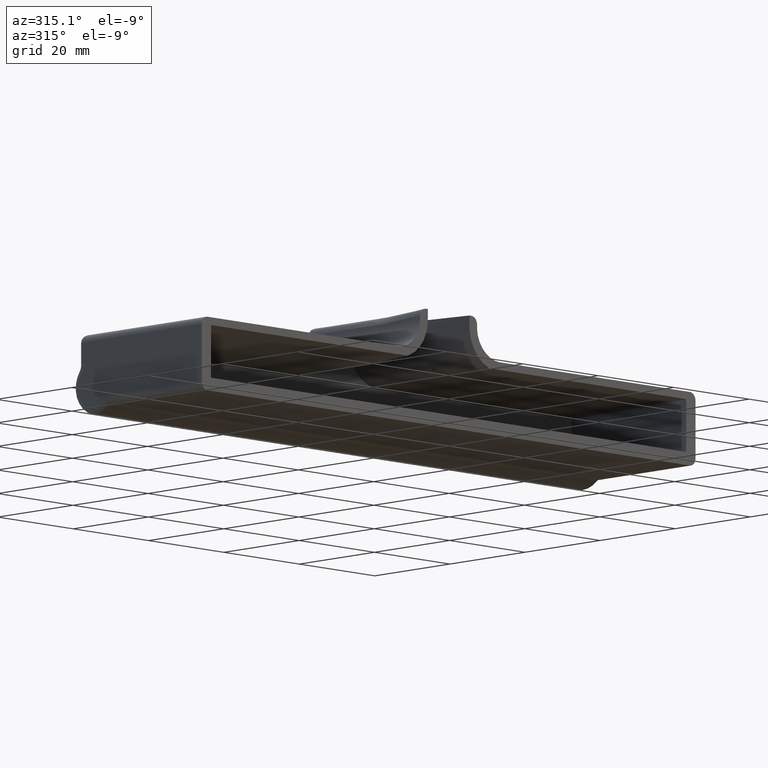
[diagram: clean part render]
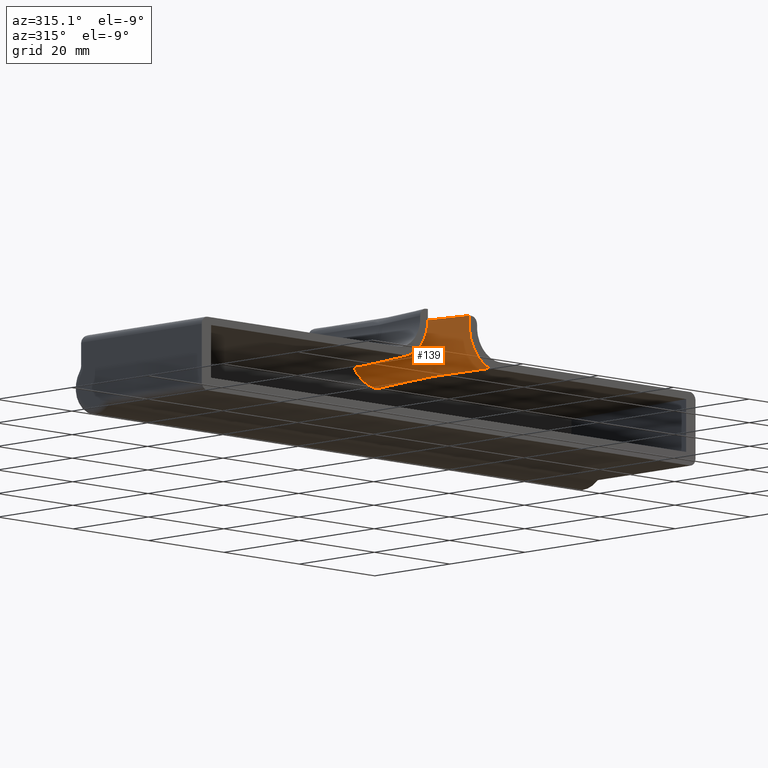
[diagram: same view with one face highlighted and labeled with its STEP entity id]
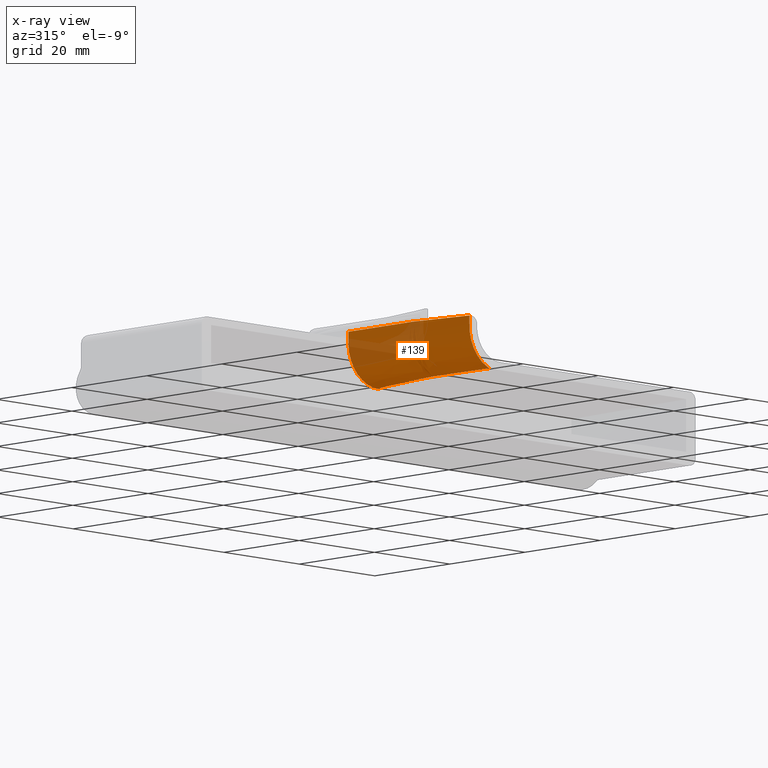
[diagram: x-ray of the same camera — body ghosted, the highlighted face saturated]
A machine part, auxiliary view. The second image highlights one B-rep face of the part: STEP entity #139.
The next image is the same camera in x-ray: the body ghosted, the highlighted face saturated — about 26% of this face is hidden behind the body in this view.
In plain terms, the highlighted face is a OffsetSurface surface.
Its self-contained STEP definition (entity closure, byte-faithful):
#139=ADVANCED_FACE('',(#296),#297,.T.);
#296=FACE_OUTER_BOUND('',#573,.T.);
#297=OFFSET_SURFACE('',#574,2.0,.F.);
#573=EDGE_LOOP('',(#1824,#1825,#1826,#1827));
#574=B_SPLINE_SURFACE_WITH_KNOTS('',3,3,((#1828,#1829,#1830,#1831,#1832,#1833,#1834,#1835,#1836,#1837,#1838),(#1839,#1840,#1841,#1842,#1843,#1844,#1845,#1846,#1847,#1848,#1849),(#1850,#1851,#1852,#1853,#1854,#1855,#1856,#1857,#1858,#1859,#1860),(#1861,#1862,#1863,#1864,#1865,#1866,#1867,#1868,#1869,#1870,#1871),(#1872,#1873,#1874,#1875,#1876,#1877,#1878,#1879,#1880,#1881,#1882),(#1883,#1884,#1885,#1886,#1887,#1888,#1889,#1890,#1891,#1892,#1893),(#1894,#1895,#1896,#1897,#1898,#1899,#1900,#1901,#1902,#1903,#1904),(#1905,#1906,#1907,#1908,#1909,#1910,#1911,#1912,#1913,#1914,#1915),(#1916,#1917,#1918,#1919,#1920,#1921,#1922,#1923,#1924,#1925,#1926)),.UNSPECIFIED.,.F.,.F.,.F.,(4,2,1,1,1,4),(4,2,1,1,1,2,4),(0.0,0.2,0.4,0.6,0.8,1.0),(0.15686181528894,1.0,2.0,3.0,4.0,5.0,5.77702223691957),.UNSPECIFIED.);
#1824=ORIENTED_EDGE('',*,*,#2951,.F.);
#1825=ORIENTED_EDGE('',*,*,#2955,.T.);
#1826=ORIENTED_EDGE('',*,*,#2956,.T.);
#1827=ORIENTED_EDGE('',*,*,#2957,.F.);
#1828=CARTESIAN_POINT('',(5.25,30.0,14.5));
#1829=CARTESIAN_POINT('',(5.25,24.6249622117531,14.5));
#1830=CARTESIAN_POINT('',(5.25,19.2499244235062,14.5));
#1831=CARTESIAN_POINT('',(5.25,13.7294425338559,14.5));
#1832=CARTESIAN_POINT('',(5.25634720316461,13.4385543310491,14.5));
#1833=CARTESIAN_POINT('',(5.2848914940124,13.0030526101796,14.5));
#1834=CARTESIAN_POINT('',(5.33240493528108,12.5692104749286,14.5));
#1835=CARTESIAN_POINT('',(5.37666636671683,12.2816393372819,14.5));
#1836=CARTESIAN_POINT('',(6.18116418474049,7.71910548800216,14.5));
#1837=CARTESIAN_POINT('',(6.96040589960305,3.29980611741438,14.5));
#1838=CARTESIAN_POINT('',(7.73964761446561,-1.11949325317341,14.5));
#1839=CARTESIAN_POINT('',(5.25,30.0,13.8333333333333));
#1840=CARTESIAN_POINT('',(5.25,24.6249622117531,13.8333333333333));
#1841=CARTESIAN_POINT('',(5.25,19.2499244235062,13.8333333333333));
#1842=CARTESIAN_POINT('',(5.25,13.7294425338559,13.8333333333333));
#1843=CARTESIAN_POINT('',(5.25634720316461,13.4385543310491,13.8333333333333));
#1844=CARTESIAN_POINT('',(5.2848914940124,13.0030526101796,13.8333333333333));
#1845=CARTESIAN_POINT('',(5.33240493528108,12.5692104749286,13.8333333333333));
#1846=CARTESIAN_POINT('',(5.37666636671683,12.2816393372819,13.8333333333333));
#1847=CARTESIAN_POINT('',(6.18116418474049,7.71910548800216,13.8333333333333));
#1848=CARTESIAN_POINT('',(6.96040589960305,3.29980611741438,13.8333333333333));
#1849=CARTESIAN_POINT('',(7.73964761446561,-1.11949325317341,13.8333333333333));
#1850=CARTESIAN_POINT('',(5.25,30.0,13.1666666666667));
#1851=CARTESIAN_POINT('',(5.25,24.6249622117531,13.1666666666667));
#1852=CARTESIAN_POINT('',(5.25,19.2499244235062,13.1666666666667));
#1853=CARTESIAN_POINT('',(5.25,13.7294425338559,13.1666666666667));
#1854=CARTESIAN_POINT('',(5.25634720316461,13.4385543310492,13.1666666666667));
#1855=CARTESIAN_POINT('',(5.2848914940124,13.0030526101796,13.1666666666667));
#1856=CARTESIAN_POINT('',(5.33240493528108,12.5692104749286,13.1666666666667));
#1857=CARTESIAN_POINT('',(5.37666636671682,12.2816393372819,13.1666666666667));
#1858=CARTESIAN_POINT('',(6.18116418474049,7.71910548800216,13.1666666666667));
#1859=CARTESIAN_POINT('',(6.96040589960305,3.29980611741438,13.1666666666667));
#1860=CARTESIAN_POINT('',(7.73964761446561,-1.11949325317341,13.1666666666667));
#1861=CARTESIAN_POINT('',(5.25,30.0,11.71470752517));
#1862=CARTESIAN_POINT('',(5.25,24.6249622117531,11.71470752517));
#1863=CARTESIAN_POINT('',(5.25,19.2499244235062,11.71470752517));
#1864=CARTESIAN_POINT('',(5.25,13.7294425338559,11.71470752517));
#1865=CARTESIAN_POINT('',(5.25634720316461,13.4385543310492,11.71470752517));
#1866=CARTESIAN_POINT('',(5.2848914940124,13.0030526101796,11.71470752517));
#1867=CARTESIAN_POINT('',(5.33240493528108,12.5692104749286,11.71470752517));
#1868=CARTESIAN_POINT('',(5.37666636671683,12.2816393372819,11.71470752517));
#1869=CARTESIAN_POINT('',(6.18116418474049,7.71910548800216,11.71470752517));
#1870=CARTESIAN_POINT('',(6.96040589960305,3.29980611741438,11.71470752517));
#1871=CARTESIAN_POINT('',(7.73964761446561,-1.11949325317341,11.71470752517));
#1872=CARTESIAN_POINT('',(5.56240877050773,30.0,10.14412257551));
#1873=CARTESIAN_POINT('',(5.56240877050773,24.6249622117531,10.14412257551));
#1874=CARTESIAN_POINT('',(5.56240877050773,19.2499244235062,10.14412257551));
#1875=CARTESIAN_POINT('',(5.56240877050773,13.7339870562708,10.14412257551));
#1876=CARTESIAN_POINT('',(5.56855767700644,13.4521854254734,10.1441225755101));
#1877=CARTESIAN_POINT('',(5.59621023929833,13.0302894711352,10.14412257551));
#1878=CARTESIAN_POINT('',(5.64223924519849,12.6100012472888,10.14412257551));
#1879=CARTESIAN_POINT('',(5.68511809405756,12.3314130700598,10.14412257551));
#1880=CARTESIAN_POINT('',(6.48882676404551,7.773354701688,10.14412257551));
#1881=CARTESIAN_POINT('',(7.26806847890807,3.35405533110021,10.14412257551));
#1882=CARTESIAN_POINT('',(8.04731019377063,-1.06524403948757,10.14412257551));
#1883=CARTESIAN_POINT('',(6.89690613281663,30.0,8.14690613281664));
#1884=CARTESIAN_POINT('',(6.89690613281663,24.6249622117531,8.14690613281664));
#1885=CARTESIAN_POINT('',(6.89690613281663,19.2499244235062,8.14690613281664));
#1886=CARTESIAN_POINT('',(6.89690613281663,13.7533996136255,8.14690613281664));
#1887=CARTESIAN_POINT('',(6.90220798762353,13.5104125345424,8.14690613281665));
#1888=CARTESIAN_POINT('',(6.92605140779751,13.1466354976689,8.14690613281662));
#1889=CARTESIAN_POINT('',(6.96573944228199,12.7842446849257,8.14690613281664));
#1890=CARTESIAN_POINT('',(7.00271239804222,12.5440284681373,8.14690613281664));
#1891=CARTESIAN_POINT('',(7.80305011282166,8.00508773675426,8.14690613281664));
#1892=CARTESIAN_POINT('',(8.58229182768422,3.58578836616648,8.14690613281664));
#1893=CARTESIAN_POINT('',(9.36153354254678,-0.833511004421312,8.14690613281664));
#1894=CARTESIAN_POINT('',(8.89412257551004,30.0,6.81240877050774));
#1895=CARTESIAN_POINT('',(8.89412257551004,24.6249622117531,6.81240877050774));
#1896=CARTESIAN_POINT('',(8.89412257551003,19.2499244235062,6.81240877050774));
#1897=CARTESIAN_POINT('',(8.89412257551004,13.7824525588307,6.81240877050774));
#1898=CARTESIAN_POINT('',(8.89815672787368,13.5975555615185,6.81240877050773));
#1899=CARTESIAN_POINT('',(8.91629936400318,13.3207596314426,6.81240877050773));
#1900=CARTESIAN_POINT('',(8.94649746412606,13.0450184177998,6.81240877050773));
#1901=CARTESIAN_POINT('',(8.97463162624088,12.8622298981315,6.81240877050773));
#1902=CARTESIAN_POINT('',(9.76992435002958,8.3519007324344,6.81240877050774));
#1903=CARTESIAN_POINT('',(10.5491660648921,3.93260136184662,6.81240877050774));
#1904=CARTESIAN_POINT('',(11.3284077797547,-0.486698008741173,6.81240877050774));
#1905=CARTESIAN_POINT('',(10.46470752517,30.0,6.5));
#1906=CARTESIAN_POINT('',(10.46470752517,24.6249622117531,6.5));
#1907=CARTESIAN_POINT('',(10.46470752517,19.2499244235062,6.5));
#1908=CARTESIAN_POINT('',(10.46470752517,13.8052994158399,6.5));
#1909=CARTESIAN_POINT('',(10.467744772874,13.6660837008381,6.5));
#1910=CARTESIAN_POINT('',(10.4814043868182,13.4576885781664,6.5));
#1911=CARTESIAN_POINT('',(10.5041397263894,13.2500874786004,6.5));
#1912=CARTESIAN_POINT('',(10.5253231765154,13.1124593505965,6.5));
#1913=CARTESIAN_POINT('',(11.316648585219,8.62462994681397,6.5));
#1914=CARTESIAN_POINT('',(12.0958903000816,4.20533057622618,6.5));
#1915=CARTESIAN_POINT('',(12.8751320149441,-0.21396879436161,6.5));
#1916=CARTESIAN_POINT('',(11.25,30.0,6.5));
#1917=CARTESIAN_POINT('',(11.25,24.6249622117531,6.5));
#1918=CARTESIAN_POINT('',(11.25,19.2499244235062,6.5));
#1919=CARTESIAN_POINT('',(11.25,13.8167228443445,6.5));
#1920=CARTESIAN_POINT('',(11.2525387953742,13.7003477704979,6.5));
#1921=CARTESIAN_POINT('',(11.2639568982257,13.5261530515283,6.5));
#1922=CARTESIAN_POINT('',(11.2829608575211,13.3526220090008,6.5));
#1923=CARTESIAN_POINT('',(11.3006689516526,13.237574076829,6.5));
#1924=CARTESIAN_POINT('',(12.0900107028137,8.76099455400374,6.5));
#1925=CARTESIAN_POINT('',(12.8692524176763,4.34169518341596,6.5));
#1926=CARTESIAN_POINT('',(13.6484941325389,-0.0776041871718328,6.5));
#2951=EDGE_CURVE('',#3334,#3335,#3336,.T.);
#2955=EDGE_CURVE('',#3334,#3342,#3343,.T.);
#2956=EDGE_CURVE('',#3342,#3344,#3345,.T.);
#2957=EDGE_CURVE('',#3335,#3344,#3346,.T.);
#3334=VERTEX_POINT('',#3992);
#3335=VERTEX_POINT('',#3993);
#3336=B_SPLINE_CURVE_WITH_KNOTS('',3,(#3994,#3995,#3996,#3997,#3998,#3999,#4000,#4001,#4002,#4003,#4004,#4005,#4006,#4007,#4008,#4009,#4010,#4011,#4012,#4013,#4014,#4015,#4016,#4017,#4018,#4019,#4020,#4021,#4022,#4023,#4024,#4025,#4026,#4027,#4028),.UNSPECIFIED.,.F.,.F.,(4,2,2,1,2,2,2,2,2,2,2,2,2,2,2,2,2,4),(0.0,0.00760319717315462,0.0114047957597319,0.0123551954063763,0.0128303952296984,0.0133055950530206,0.0137807948763427,0.0142559946996649,0.0152063943463092,0.0190079929328865,0.0228095915194638,0.0266111901060411,0.0285119893993298,0.0294623890459741,0.0299375888692963,0.0301751887809574,0.0302939887367879,0.0304127886926185),.UNSPECIFIED.);
#3342=VERTEX_POINT('',#4037);
#3343=B_SPLINE_CURVE_WITH_KNOTS('',3,(#4038,#4039,#4040,#4041,#4042,#4043,#4044,#4045,#4046,#4047,#4048,#4049,#4050,#4051,#4052,#4053,#4054,#4055,#4056),.UNSPECIFIED.,.F.,.F.,(4,2,2,2,2,2,2,2,1,4),(0.00293818128565956,0.00438657506291554,0.00511077195154353,0.00583496884017152,0.00873175639468348,0.0116285439491954,0.0123527408378234,0.0127148392821374,0.0130769377264514,0.0145253315037074),.UNSPECIFIED.);
#3344=VERTEX_POINT('',#4057);
#3345=B_SPLINE_CURVE_WITH_KNOTS('',3,(#4058,#4059,#4060,#4061,#4062,#4063,#4064,#4065,#4066,#4067,#4068,#4069,#4070,#4071,#4072,#4073,#4074,#4075,#4076),.UNSPECIFIED.,.F.,.F.,(4,3,3,3,3,3,4),(0.0,0.166666666666667,0.333333333333333,0.5,0.666666666666667,0.833333333333333,1.0),.UNSPECIFIED.);
#3346=B_SPLINE_CURVE_WITH_KNOTS('',3,(#4077,#4078,#4079,#4080,#4081,#4082,#4083,#4084,#4085,#4086,#4087,#4088,#4089,#4090,#4091,#4092,#4093,#4094,#4095,#4096,#4097,#4098,#4099,#4100),.UNSPECIFIED.,.F.,.F.,(4,2,2,2,2,2,2,2,2,2,2,4),(0.0,0.001803772938655,0.00360754587731,0.005411318815965,0.00631320528529249,0.00721509175461999,0.00901886469327498,0.01082263763193,0.0117245241012575,0.0121754673359212,0.012626410570585,0.0144301835092399),.UNSPECIFIED.);
#3992=CARTESIAN_POINT('',(10.7441838773947,0.0,5.02365194784654));
#3993=CARTESIAN_POINT('',(11.25,30.0,4.5));
#3994=CARTESIAN_POINT('',(10.7441838773947,-6.93889390390723E-15,5.02365194784654));
#3995=CARTESIAN_POINT('',(10.418136332075,2.51297484229248,4.97978780881135));
#3996=CARTESIAN_POINT('',(10.0999221706267,5.02693510356057,4.93590646922395));
#3997=CARTESIAN_POINT('',(9.64061106761898,8.80014112334168,4.87004491316113));
#3998=CARTESIAN_POINT('',(9.49054663474753,10.0582434845291,4.84808465476026));
#3999=CARTESIAN_POINT('',(9.30795222707349,11.6314574751246,4.82062410240843));
#4000=CARTESIAN_POINT('',(9.25355110767009,12.1034667462973,4.81238514993339));
#4001=CARTESIAN_POINT('',(9.19976117322812,12.5755453668444,4.80414498696077));
#4002=CARTESIAN_POINT('',(9.16404264958499,12.8902806970399,4.798651261337));
#4003=CARTESIAN_POINT('',(9.14911472797622,13.0479730734008,4.79589873066869));
#4004=CARTESIAN_POINT('',(9.13446980356905,13.3641497936019,4.79037984548878));
#4005=CARTESIAN_POINT('',(9.13334480417326,13.5226629184064,4.78761298860335));
#4006=CARTESIAN_POINT('',(9.14345497821378,13.8385537108864,4.78209909431039));
#4007=CARTESIAN_POINT('',(9.15550605792116,13.9961093361481,4.77934895064163));
#4008=CARTESIAN_POINT('',(9.18613465099925,14.4690840090949,4.77109314701594));
#4009=CARTESIAN_POINT('',(9.2068733558309,14.78438264932,4.76558958877903));
#4010=CARTESIAN_POINT('',(9.31231566935491,16.3607784193343,4.73807349826087));
#4011=CARTESIAN_POINT('',(9.40210350918315,17.6214943661969,4.71606761955234));
#4012=CARTESIAN_POINT('',(9.59845210630874,20.1415301313106,4.67208023165085));
#4013=CARTESIAN_POINT('',(9.70468711688798,21.4008949744148,4.65009793654618));
#4014=CARTESIAN_POINT('',(9.94737125982909,23.9171768602911,4.60617607285051));
#4015=CARTESIAN_POINT('',(10.0813263585937,25.1745146889677,4.58422915941423));
#4016=CARTESIAN_POINT('',(10.3422407632008,27.0524922403512,4.5514489393211));
#4017=CARTESIAN_POINT('',(10.4381857743109,27.6776243676394,4.5405372174508));
#4018=CARTESIAN_POINT('',(10.6255819140488,28.6069431100838,4.52431589846242));
#4019=CARTESIAN_POINT('',(10.6945228540325,28.9157511395029,4.51892563425832));
#4020=CARTESIAN_POINT('',(10.8298620772268,29.3701484779989,4.51099409921167));
#4021=CARTESIAN_POINT('',(10.8797397315753,29.5204883118386,4.5083699076507));
#4022=CARTESIAN_POINT('',(10.9778513132181,29.7363870165206,4.50460138174255));
#4023=CARTESIAN_POINT('',(11.0141509926034,29.806968493427,4.50336937748042));
#4024=CARTESIAN_POINT('',(11.0842240246512,29.9026825978812,4.50169868157263));
#4025=CARTESIAN_POINT('',(11.1103132649639,29.9329797456413,4.50116984289145));
#4026=CARTESIAN_POINT('',(11.1724335154564,29.981737286112,4.50031877685679));
#4027=CARTESIAN_POINT('',(11.2099807666154,30.0,4.5));
#4028=CARTESIAN_POINT('',(11.25,30.0,4.5));
#4037=CARTESIAN_POINT('',(5.51139752543856,-6.93889390390723E-15,14.5));
#4038=CARTESIAN_POINT('',(10.7441838773948,-1.06226121779576E-14,5.02365194784652));
#4039=CARTESIAN_POINT('',(10.2872656061676,-1.05876228817343E-14,5.19486941533416));
#4040=CARTESIAN_POINT('',(9.85172207004412,1.39536708904569E-14,5.40465509291871));
#4041=CARTESIAN_POINT('',(9.22921570702356,1.3984563225358E-14,5.77492474106592));
#4042=CARTESIAN_POINT('',(9.02688178979651,2.69264816649265E-15,5.90767337650551));
#4043=CARTESIAN_POINT('',(8.6327985049592,2.7060582363747E-15,6.19226922949213));
#4044=CARTESIAN_POINT('',(8.44042633162347,-4.62922806033821E-15,6.34471886274525));
#4045=CARTESIAN_POINT('',(7.51895797994415,-4.61449783688057E-15,7.14594550402196));
#4046=CARTESIAN_POINT('',(6.89949161837037,3.58295725791044E-15,7.92387345254158));
#4047=CARTESIAN_POINT('',(5.98139635781644,3.48440465083979E-15,9.64679717278481));
#4048=CARTESIAN_POINT('',(5.68329487437059,-7.4665201589994E-15,10.596503610862));
#4049=CARTESIAN_POINT('',(5.53821550661051,-7.59715082968424E-15,11.8083233860807));
#4050=CARTESIAN_POINT('',(5.52037000452348,-2.78404248381061E-15,12.0527723543937));
#4051=CARTESIAN_POINT('',(5.51085429478126,-2.82780745919873E-15,12.4196743843334));
#4052=CARTESIAN_POINT('',(5.51139752543856,-1.107006672666E-14,12.5420578764146));
#4053=CARTESIAN_POINT('',(5.51139752543856,-1.1100037586287E-14,12.7868006418628));
#4054=CARTESIAN_POINT('',(5.51139752543856,-1.08620352198789E-14,13.3986575554832));
#4055=CARTESIAN_POINT('',(5.51139752543856,-6.87895218465332E-15,14.0105144691036));
#4056=CARTESIAN_POINT('',(5.51139752543856,-6.93889390390723E-15,14.5));
#4057=CARTESIAN_POINT('',(3.25,30.0,14.5));
#4058=CARTESIAN_POINT('',(5.51197639584475,-0.00328293721055239,14.5));
#4059=CARTESIAN_POINT('',(4.59318696757092,5.20743084341576,14.5));
#4060=CARTESIAN_POINT('',(3.86471055847312,9.33394648230654,14.5));
#4061=CARTESIAN_POINT('',(3.6091236766417,10.7912692554677,14.5));
#4062=CARTESIAN_POINT('',(3.35353679481028,12.2485920286288,14.5));
#4063=CARTESIAN_POINT('',(3.36236825554601,12.2286397546215,14.5));
#4064=CARTESIAN_POINT('',(3.34242639420779,12.3883839580806,14.5));
#4065=CARTESIAN_POINT('',(3.32248453286956,12.5481281615398,14.5));
#4066=CARTESIAN_POINT('',(3.30575784331085,12.7082689465076,14.5));
#4067=CARTESIAN_POINT('',(3.29225926552201,12.8686876748082,14.5));
#4068=CARTESIAN_POINT('',(3.27876068773316,13.0291064031088,14.5));
#4069=CARTESIAN_POINT('',(3.26849111540467,13.1897868195117,14.5));
#4070=CARTESIAN_POINT('',(3.2614577603622,13.3506205116842,14.5));
#4071=CARTESIAN_POINT('',(3.25442440531973,13.5114542038567,14.5));
#4072=CARTESIAN_POINT('',(3.25052396254008,13.7001522905931,14.5));
#4073=CARTESIAN_POINT('',(3.25005979918225,16.0645531746217,14.5));
#4074=CARTESIAN_POINT('',(3.24959563582441,18.4289540586503,14.5));
#4075=CARTESIAN_POINT('',(3.25,24.1198835462765,14.5));
#4076=CARTESIAN_POINT('',(3.25,30.0,14.5));
#4077=CARTESIAN_POINT('',(11.25,30.0,4.5));
#4078=CARTESIAN_POINT('',(10.6400924485574,30.0,4.5));
#4079=CARTESIAN_POINT('',(10.0419812087457,30.0,4.56929461455834));
#4080=CARTESIAN_POINT('',(8.86814488565619,30.0,4.83938597222033));
#4081=CARTESIAN_POINT('',(8.28767402975924,30.0,5.0442130202194));
#4082=CARTESIAN_POINT('',(7.20546339892574,30.0,5.57186563311457));
#4083=CARTESIAN_POINT('',(6.6962564667425,30.0,5.89487850939961));
#4084=CARTESIAN_POINT('',(5.98492366428189,30.0,6.46926358858232));
#4085=CARTESIAN_POINT('',(5.75974636553155,30.0,6.67334723972598));
#4086=CARTESIAN_POINT('',(5.33338191162295,30.0,7.10688841816986));
#4087=CARTESIAN_POINT('',(5.13200697952975,30.0,7.33671416185121));
#4088=CARTESIAN_POINT('',(4.57112416440408,30.0,8.05541231374856));
#4089=CARTESIAN_POINT('',(4.25123333166781,30.0,8.5778114733609));
#4090=CARTESIAN_POINT('',(3.73830337258214,30.0,9.68105717727952));
#4091=CARTESIAN_POINT('',(3.54516643243582,30.0,10.2640575086119));
#4092=CARTESIAN_POINT('',(3.35816464306583,30.0,11.1565247765987));
#4093=CARTESIAN_POINT('',(3.31255099570812,30.0,11.4587081122181));
#4094=CARTESIAN_POINT('',(3.27028176183834,30.0,11.9127015684133));
#4095=CARTESIAN_POINT('',(3.26050746951181,30.0,12.06432145238));
#4096=CARTESIAN_POINT('',(3.24964387152911,30.0,12.3681423025604));
#4097=CARTESIAN_POINT('',(3.25,30.0,12.5204399777434));
#4098=CARTESIAN_POINT('',(3.25,30.0,13.2818092170729));
#4099=CARTESIAN_POINT('',(3.25,30.0,13.8909046085365));
#4100=CARTESIAN_POINT('',(3.25,30.0,14.5));